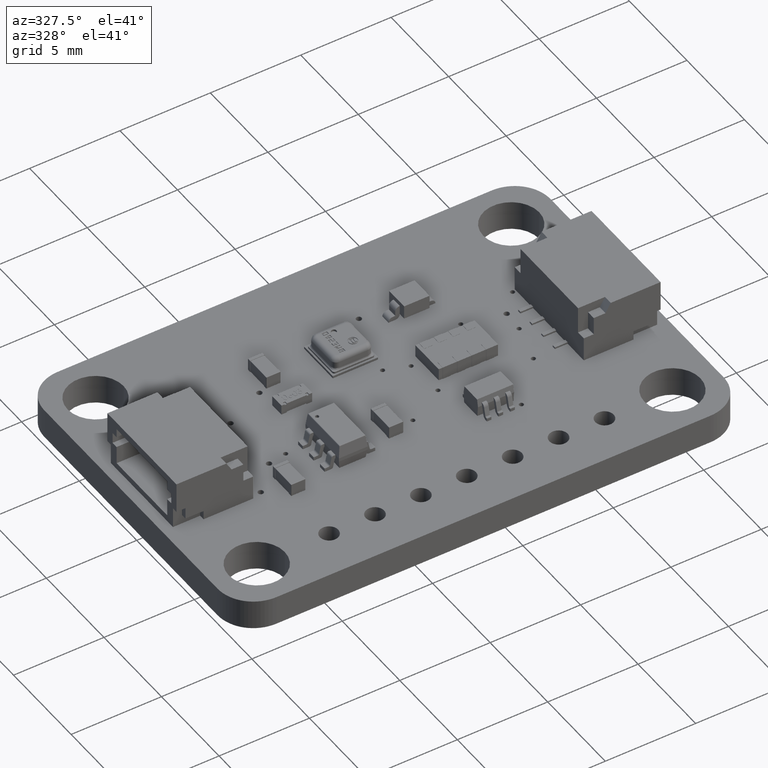
[diagram: clean part render]
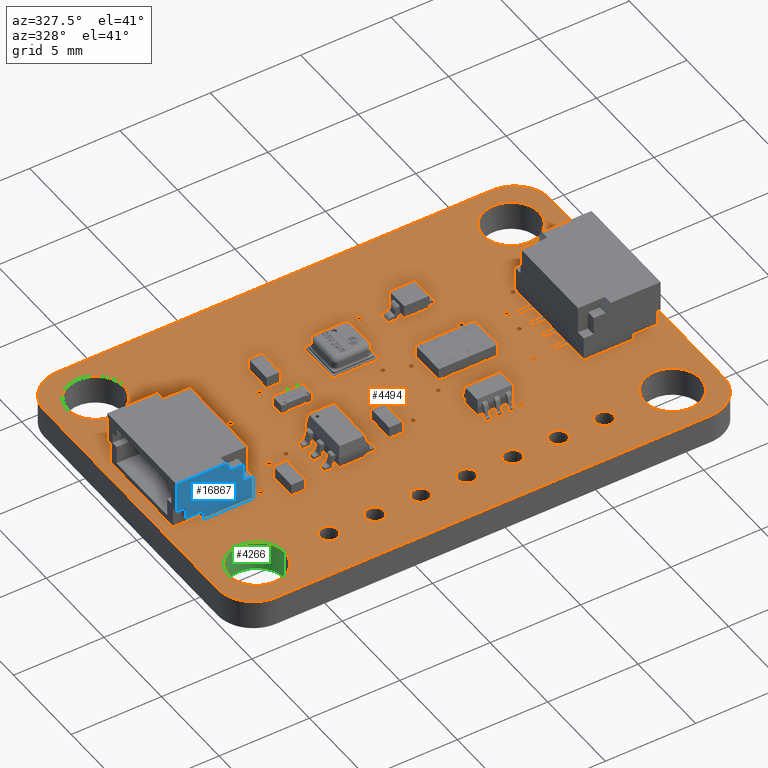
[diagram: same view with three faces highlighted in distinct colors, each labeled with its STEP entity id]
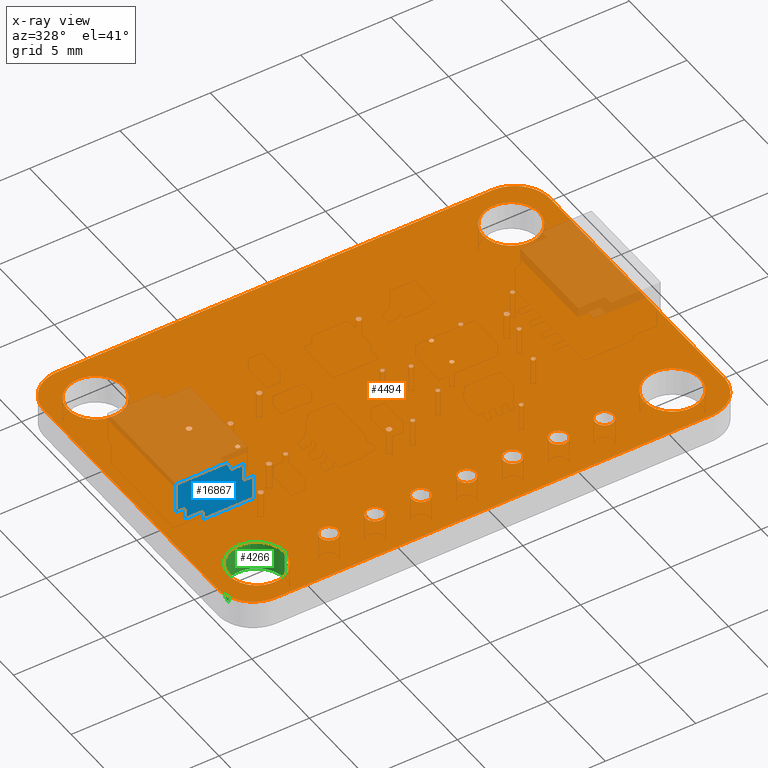
[diagram: x-ray of the same camera — body ghosted, the three highlighted faces saturated]
A machine part, auxiliary view with three faces highlighted in distinct colors.
The next image is the same camera in x-ray (body ghosted, the three faces saturated) — at least one of them is partly hidden behind the body in this view.
Their STEP definitions:

[orange] entity #4494 — the highlighted planar face has unit normal (0, 0, -1).
#109 = VERTEX_POINT('',#110);
#110 = CARTESIAN_POINT('',(26.,0.E+000,0.82));
#116 = EDGE_CURVE('',#109,#117,#119,.T.);
#117 = VERTEX_POINT('',#118);
#118 = CARTESIAN_POINT('',(2.,0.E+000,0.82));
#119 = LINE('',#120,#121);
#120 = CARTESIAN_POINT('',(26.,0.E+000,0.82));
#121 = VECTOR('',#122,1.);
#122 = DIRECTION('',(-1.,0.E+000,0.E+000));
#149 = VERTEX_POINT('',#150);
#150 = CARTESIAN_POINT('',(26.20786,-1.01E-002,0.82));
#156 = EDGE_CURVE('',#149,#109,#157,.T.);
#157 = LINE('',#158,#159);
#158 = CARTESIAN_POINT('',(26.20786,-1.01E-002,0.82));
#159 = VECTOR('',#160,1.);
#160 = DIRECTION('',(-0.998821572954,4.853313714442E-002,0.E+000));
#178 = EDGE_CURVE('',#117,#179,#181,.T.);
#179 = VERTEX_POINT('',#180);
#180 = CARTESIAN_POINT('',(1.79214,-1.01E-002,0.82));
#181 = LINE('',#182,#183);
#182 = CARTESIAN_POINT('',(2.,0.E+000,0.82));
#183 = VECTOR('',#184,1.);
#184 = DIRECTION('',(-0.998821572954,-4.853313714442E-002,0.E+000));
#211 = VERTEX_POINT('',#212);
#212 = CARTESIAN_POINT('',(26.40894,-3.979E-002,0.82));
#218 = EDGE_CURVE('',#211,#149,#219,.T.);
#219 = LINE('',#220,#221);
#220 = CARTESIAN_POINT('',(26.40894,-3.979E-002,0.82));
#221 = VECTOR('',#222,1.);
#222 = DIRECTION('',(-0.989274402589,0.146069012397,0.E+000));
#240 = EDGE_CURVE('',#179,#241,#243,.T.);
#241 = VERTEX_POINT('',#242);
#242 = CARTESIAN_POINT('',(1.59106,-3.979E-002,0.82));
#243 = LINE('',#244,#245);
#244 = CARTESIAN_POINT('',(1.79214,-1.01E-002,0.82));
#245 = VECTOR('',#246,1.);
#246 = DIRECTION('',(-0.989274402589,-0.146069012397,0.E+000));
#273 = VERTEX_POINT('',#274);
#274 = CARTESIAN_POINT('',(26.60233,-8.817E-002,0.82));
#280 = EDGE_CURVE('',#273,#211,#281,.T.);
#281 = LINE('',#282,#283);
#282 = CARTESIAN_POINT('',(26.60233,-8.817E-002,0.82));
#283 = VECTOR('',#284,1.);
#284 = DIRECTION('',(-0.970104127996,0.242689062063,0.E+000));
#302 = EDGE_CURVE('',#241,#303,#305,.T.);
#303 = VERTEX_POINT('',#304);
#304 = CARTESIAN_POINT('',(1.39767,-8.817E-002,0.82));
#305 = LINE('',#306,#307);
#306 = CARTESIAN_POINT('',(1.59106,-3.979E-002,0.82));
#307 = VECTOR('',#308,1.);
#308 = DIRECTION('',(-0.970104127996,-0.242689062063,0.E+000));
#335 = VERTEX_POINT('',#336);
#336 = CARTESIAN_POINT('',(26.78711,-0.1543,0.82));
#342 = EDGE_CURVE('',#335,#273,#343,.T.);
#343 = LINE('',#344,#345);
#344 = CARTESIAN_POINT('',(26.78711,-0.1543,0.82));
#345 = VECTOR('',#346,1.);
#346 = DIRECTION('',(-0.941520370828,0.336956067339,0.E+000));
#364 = EDGE_CURVE('',#303,#365,#367,.T.);
#365 = VERTEX_POINT('',#366);
#366 = CARTESIAN_POINT('',(1.21289,-0.1543,0.82));
#367 = LINE('',#368,#369);
#368 = CARTESIAN_POINT('',(1.39767,-8.817E-002,0.82));
#369 = VECTOR('',#370,1.);
#370 = DIRECTION('',(-0.941520370828,-0.336956067339,0.E+000));
#397 = VERTEX_POINT('',#398);
#398 = CARTESIAN_POINT('',(26.96237,-0.23727,0.82));
#404 = EDGE_CURVE('',#397,#335,#405,.T.);
#405 = LINE('',#406,#407);
#406 = CARTESIAN_POINT('',(26.96237,-0.23727,0.82));
#407 = VECTOR('',#408,1.);
#408 = DIRECTION('',(-0.90383337441,0.42788460045,0.E+000));
#426 = EDGE_CURVE('',#365,#427,#429,.T.);
#427 = VERTEX_POINT('',#428);
#428 = CARTESIAN_POINT('',(1.03763,-0.23727,0.82));
#429 = LINE('',#430,#431);
#430 = CARTESIAN_POINT('',(1.21289,-0.1543,0.82));
#431 = VECTOR('',#432,1.);
#432 = DIRECTION('',(-0.90383337441,-0.42788460045,0.E+000));
#459 = VERTEX_POINT('',#460);
#460 = CARTESIAN_POINT('',(27.1272,-0.33618,0.82));
#466 = EDGE_CURVE('',#459,#397,#467,.T.);
#467 = LINE('',#468,#469);
#468 = CARTESIAN_POINT('',(27.1272,-0.33618,0.82));
#469 = VECTOR('',#470,1.);
#470 = DIRECTION('',(-0.857465383851,0.514541655746,0.E+000));
#488 = EDGE_CURVE('',#427,#489,#491,.T.);
#489 = VERTEX_POINT('',#490);
#490 = CARTESIAN_POINT('',(0.8728,-0.33618,0.82));
#491 = LINE('',#492,#493);
#492 = CARTESIAN_POINT('',(1.03763,-0.23727,0.82));
#493 = VECTOR('',#494,1.);
#494 = DIRECTION('',(-0.857465383851,-0.514541655746,0.E+000));
#521 = VERTEX_POINT('',#522);
#522 = CARTESIAN_POINT('',(27.28067,-0.4501,0.82));
#528 = EDGE_CURVE('',#521,#459,#529,.T.);
#529 = LINE('',#530,#531);
#530 = CARTESIAN_POINT('',(27.28067,-0.4501,0.82));
#531 = VECTOR('',#532,1.);
#532 = DIRECTION('',(-0.802959902094,0.596033049108,0.E+000));
#550 = EDGE_CURVE('',#489,#551,#553,.T.);
#551 = VERTEX_POINT('',#552);
#552 = CARTESIAN_POINT('',(0.71933,-0.4501,0.82));
#553 = LINE('',#554,#555);
#554 = CARTESIAN_POINT('',(0.8728,-0.33618,0.82));
#555 = VECTOR('',#556,1.);
#556 = DIRECTION('',(-0.802959902094,-0.596033049108,0.E+000));
#583 = VERTEX_POINT('',#584);
#584 = CARTESIAN_POINT('',(27.42188,-0.57812,0.82));
#590 = EDGE_CURVE('',#583,#521,#591,.T.);
#591 = LINE('',#592,#593);
#592 = CARTESIAN_POINT('',(27.42188,-0.57812,0.82));
#593 = VECTOR('',#594,1.);
#594 = DIRECTION('',(-0.740860487423,0.671658944833,0.E+000));
#612 = EDGE_CURVE('',#551,#613,#615,.T.);
#613 = VERTEX_POINT('',#614);
#614 = CARTESIAN_POINT('',(0.57812,-0.57812,0.82));
#615 = LINE('',#616,#617);
#616 = CARTESIAN_POINT('',(0.71933,-0.4501,0.82));
#617 = VECTOR('',#618,1.);
#618 = DIRECTION('',(-0.740860487423,-0.671658944833,0.E+000));
#645 = VERTEX_POINT('',#646);
#646 = CARTESIAN_POINT('',(27.5499,-0.71933,0.82));
#652 = EDGE_CURVE('',#645,#583,#653,.T.);
#653 = LINE('',#654,#655);
#654 = CARTESIAN_POINT('',(27.5499,-0.71933,0.82));
#655 = VECTOR('',#656,1.);
#656 = DIRECTION('',(-0.671658944833,0.740860487423,0.E+000));
#674 = EDGE_CURVE('',#613,#675,#677,.T.);
#675 = VERTEX_POINT('',#676);
#676 = CARTESIAN_POINT('',(0.4501,-0.71933,0.82));
#677 = LINE('',#678,#679);
#678 = CARTESIAN_POINT('',(0.57812,-0.57812,0.82));
#679 = VECTOR('',#680,1.);
#680 = DIRECTION('',(-0.671658944833,-0.740860487423,0.E+000));
#707 = VERTEX_POINT('',#708);
#708 = CARTESIAN_POINT('',(27.66382,-0.8728,0.82));
#714 = EDGE_CURVE('',#707,#645,#715,.T.);
#715 = LINE('',#716,#717);
#716 = CARTESIAN_POINT('',(27.66382,-0.8728,0.82));
#717 = VECTOR('',#718,1.);
#718 = DIRECTION('',(-0.596033049108,0.802959902094,0.E+000));
#736 = EDGE_CURVE('',#675,#737,#739,.T.);
#737 = VERTEX_POINT('',#738);
#738 = CARTESIAN_POINT('',(0.33618,-0.8728,0.82));
#739 = LINE('',#740,#741);
#740 = CARTESIAN_POINT('',(0.4501,-0.71933,0.82));
#741 = VECTOR('',#742,1.);
#742 = DIRECTION('',(-0.596033049108,-0.802959902094,0.E+000));
#769 = VERTEX_POINT('',#770);
#770 = CARTESIAN_POINT('',(27.76273,-1.03763,0.82));
#776 = EDGE_CURVE('',#769,#707,#777,.T.);
#777 = LINE('',#778,#779);
#778 = CARTESIAN_POINT('',(27.76273,-1.03763,0.82));
#779 = VECTOR('',#780,1.);
#780 = DIRECTION('',(-0.514541655746,0.857465383851,0.E+000));
#798 = EDGE_CURVE('',#737,#799,#801,.T.);
#799 = VERTEX_POINT('',#800);
#800 = CARTESIAN_POINT('',(0.23727,-1.03763,0.82));
#801 = LINE('',#802,#803);
#802 = CARTESIAN_POINT('',(0.33618,-0.8728,0.82));
#803 = VECTOR('',#804,1.);
#804 = DIRECTION('',(-0.514541655746,-0.857465383851,0.E+000));
#831 = VERTEX_POINT('',#832);
#832 = CARTESIAN_POINT('',(27.8457,-1.21289,0.82));
#838 = EDGE_CURVE('',#831,#769,#839,.T.);
#839 = LINE('',#840,#841);
#840 = CARTESIAN_POINT('',(27.8457,-1.21289,0.82));
#841 = VECTOR('',#842,1.);
#842 = DIRECTION('',(-0.42788460045,0.90383337441,0.E+000));
#860 = EDGE_CURVE('',#799,#861,#863,.T.);
#861 = VERTEX_POINT('',#862);
#862 = CARTESIAN_POINT('',(0.1543,-1.21289,0.82));
#863 = LINE('',#864,#865);
#864 = CARTESIAN_POINT('',(0.23727,-1.03763,0.82));
#865 = VECTOR('',#866,1.);
#866 = DIRECTION('',(-0.42788460045,-0.90383337441,0.E+000));
#893 = VERTEX_POINT('',#894);
#894 = CARTESIAN_POINT('',(27.91183,-1.39767,0.82));
#900 = EDGE_CURVE('',#893,#831,#901,.T.);
#901 = LINE('',#902,#903);
#902 = CARTESIAN_POINT('',(27.91183,-1.39767,0.82));
#903 = VECTOR('',#904,1.);
#904 = DIRECTION('',(-0.336956067339,0.941520370828,0.E+000));
#922 = EDGE_CURVE('',#861,#923,#925,.T.);
#923 = VERTEX_POINT('',#924);
#924 = CARTESIAN_POINT('',(8.817E-002,-1.39767,0.82));
#925 = LINE('',#926,#927);
#926 = CARTESIAN_POINT('',(0.1543,-1.21289,0.82));
#927 = VECTOR('',#928,1.);
#928 = DIRECTION('',(-0.336956067339,-0.941520370828,0.E+000));
#955 = VERTEX_POINT('',#956);
#956 = CARTESIAN_POINT('',(27.9602,-1.59106,0.82));
#962 = EDGE_CURVE('',#955,#893,#963,.T.);
#963 = LINE('',#964,#965);
#964 = CARTESIAN_POINT('',(27.9602,-1.59106,0.82));
#965 = VECTOR('',#966,1.);
#966 = DIRECTION('',(-0.24264185261,0.970115937073,0.E+000));
#984 = EDGE_CURVE('',#923,#985,#987,.T.);
#985 = VERTEX_POINT('',#986);
#986 = CARTESIAN_POINT('',(3.98E-002,-1.59106,0.82));
#987 = LINE('',#988,#989);
#988 = CARTESIAN_POINT('',(8.817E-002,-1.39767,0.82));
#989 = VECTOR('',#990,1.);
#990 = DIRECTION('',(-0.24264185261,-0.970115937073,0.E+000));
#1017 = VERTEX_POINT('',#1018);
#1018 = CARTESIAN_POINT('',(27.9899,-1.79214,0.82));
#1024 = EDGE_CURVE('',#1017,#955,#1025,.T.);
#1025 = LINE('',#1026,#1027);
#1026 = CARTESIAN_POINT('',(27.9899,-1.79214,0.82));
#1027 = VECTOR('',#1028,1.);
#1028 = DIRECTION('',(-0.146117160232,0.989267292235,0.E+000));
#1046 = EDGE_CURVE('',#985,#1047,#1049,.T.);
#1047 = VERTEX_POINT('',#1048);
#1048 = CARTESIAN_POINT('',(1.01E-002,-1.79214,0.82));
#1049 = LINE('',#1050,#1051);
#1050 = CARTESIAN_POINT('',(3.98E-002,-1.59106,0.82));
#1051 = VECTOR('',#1052,1.);
#1052 = DIRECTION('',(-0.146117160232,-0.989267292235,0.E+000));
#1079 = VERTEX_POINT('',#1080);
#1080 = CARTESIAN_POINT('',(28.,-2.,0.82));
#1086 = EDGE_CURVE('',#1079,#1017,#1087,.T.);
#1087 = LINE('',#1088,#1089);
#1088 = CARTESIAN_POINT('',(28.,-2.,0.82));
#1089 = VECTOR('',#1090,1.);
#1090 = DIRECTION('',(-4.853313714442E-002,0.998821572954,0.E+000));
#1108 = EDGE_CURVE('',#1047,#1109,#1111,.T.);
#1109 = VERTEX_POINT('',#1110);
#1110 = CARTESIAN_POINT('',(0.E+000,-2.,0.82));
#1111 = LINE('',#1112,#1113);
#1112 = CARTESIAN_POINT('',(1.01E-002,-1.79214,0.82));
#1113 = VECTOR('',#1114,1.);
#1114 = DIRECTION('',(-4.853313714442E-002,-0.998821572954,0.E+000));
#1141 = VERTEX_POINT('',#1142);
#1142 = CARTESIAN_POINT('',(28.,-17.,0.82));
#1148 = EDGE_CURVE('',#1141,#1079,#1149,.T.);
#1149 = LINE('',#1150,#1151);
#1150 = CARTESIAN_POINT('',(28.,-17.,0.82));
#1151 = VECTOR('',#1152,1.);
#1152 = DIRECTION('',(0.E+000,1.,0.E+000));
#1170 = EDGE_CURVE('',#1109,#1171,#1173,.T.);
#1171 = VERTEX_POINT('',#1172);
#1172 = CARTESIAN_POINT('',(0.E+000,-17.,0.82));
#1173 = LINE('',#1174,#1175);
#1174 = CARTESIAN_POINT('',(0.E+000,-2.,0.82));
#1175 = VECTOR('',#1176,1.);
#1176 = DIRECTION('',(0.E+000,-1.,0.E+000));
#1203 = VERTEX_POINT('',#1204);
#1204 = CARTESIAN_POINT('',(27.9899,-17.20786,0.82));
#1210 = EDGE_CURVE('',#1203,#1141,#1211,.T.);
#1211 = LINE('',#1212,#1213);
#1212 = CARTESIAN_POINT('',(27.9899,-17.20786,0.82));
#1213 = VECTOR('',#1214,1.);
#1214 = DIRECTION('',(4.853313714442E-002,0.998821572954,0.E+000));
#1232 = EDGE_CURVE('',#1171,#1233,#1235,.T.);
#1233 = VERTEX_POINT('',#1234);
#1234 = CARTESIAN_POINT('',(1.01E-002,-17.20786,0.82));
#1235 = LINE('',#1236,#1237);
#1236 = CARTESIAN_POINT('',(0.E+000,-17.,0.82));
#1237 = VECTOR('',#1238,1.);
#1238 = DIRECTION('',(4.853313714442E-002,-0.998821572954,0.E+000));
#1265 = VERTEX_POINT('',#1266);
#1266 = CARTESIAN_POINT('',(27.9602,-17.40894,0.82));
#1272 = EDGE_CURVE('',#1265,#1203,#1273,.T.);
#1273 = LINE('',#1274,#1275);
#1274 = CARTESIAN_POINT('',(27.9602,-17.40894,0.82));
#1275 = VECTOR('',#1276,1.);
#1276 = DIRECTION('',(0.146117160232,0.989267292235,0.E+000));
#1294 = EDGE_CURVE('',#1233,#1295,#1297,.T.);
#1295 = VERTEX_POINT('',#1296);
#1296 = CARTESIAN_POINT('',(3.98E-002,-17.40894,0.82));
#1297 = LINE('',#1298,#1299);
#1298 = CARTESIAN_POINT('',(1.01E-002,-17.20786,0.82));
#1299 = VECTOR('',#1300,1.);
#1300 = DIRECTION('',(0.146117160232,-0.989267292235,0.E+000));
#1327 = VERTEX_POINT('',#1328);
#1328 = CARTESIAN_POINT('',(27.91183,-17.60233,0.82));
#1334 = EDGE_CURVE('',#1327,#1265,#1335,.T.);
#1335 = LINE('',#1336,#1337);
#1336 = CARTESIAN_POINT('',(27.91183,-17.60233,0.82));
#1337 = VECTOR('',#1338,1.);
#1338 = DIRECTION('',(0.24264185261,0.970115937073,0.E+000));
#1356 = EDGE_CURVE('',#1295,#1357,#1359,.T.);
#1357 = VERTEX_POINT('',#1358);
#1358 = CARTESIAN_POINT('',(8.817E-002,-17.60233,0.82));
#1359 = LINE('',#1360,#1361);
#1360 = CARTESIAN_POINT('',(3.98E-002,-17.40894,0.82));
#1361 = VECTOR('',#1362,1.);
#1362 = DIRECTION('',(0.24264185261,-0.970115937073,0.E+000));
#1389 = VERTEX_POINT('',#1390);
#1390 = CARTESIAN_POINT('',(27.8457,-17.78711,0.82));
#1396 = EDGE_CURVE('',#1389,#1327,#1397,.T.);
#1397 = LINE('',#1398,#1399);
#1398 = CARTESIAN_POINT('',(27.8457,-17.78711,0.82));
#1399 = VECTOR('',#1400,1.);
#1400 = DIRECTION('',(0.336956067339,0.941520370828,0.E+000));
#1418 = EDGE_CURVE('',#1357,#1419,#1421,.T.);
#1419 = VERTEX_POINT('',#1420);
#1420 = CARTESIAN_POINT('',(0.1543,-17.78711,0.82));
#1421 = LINE('',#1422,#1423);
#1422 = CARTESIAN_POINT('',(8.817E-002,-17.60233,0.82));
#1423 = VECTOR('',#1424,1.);
#1424 = DIRECTION('',(0.336956067339,-0.941520370828,0.E+000));
#1451 = VERTEX_POINT('',#1452);
#1452 = CARTESIAN_POINT('',(27.76273,-17.96237,0.82));
#1458 = EDGE_CURVE('',#1451,#1389,#1459,.T.);
#1459 = LINE('',#1460,#1461);
#1460 = CARTESIAN_POINT('',(27.76273,-17.96237,0.82));
#1461 = VECTOR('',#1462,1.);
#1462 = DIRECTION('',(0.42788460045,0.90383337441,0.E+000));
#1480 = EDGE_CURVE('',#1419,#1481,#1483,.T.);
#1481 = VERTEX_POINT('',#1482);
#1482 = CARTESIAN_POINT('',(0.23727,-17.96237,0.82));
#1483 = LINE('',#1484,#1485);
#1484 = CARTESIAN_POINT('',(0.1543,-17.78711,0.82));
#1485 = VECTOR('',#1486,1.);
#1486 = DIRECTION('',(0.42788460045,-0.90383337441,0.E+000));
#1513 = VERTEX_POINT('',#1514);
#1514 = CARTESIAN_POINT('',(27.66382,-18.1272,0.82));
#1520 = EDGE_CURVE('',#1513,#1451,#1521,.T.);
#1521 = LINE('',#1522,#1523);
#1522 = CARTESIAN_POINT('',(27.66382,-18.1272,0.82));
#1523 = VECTOR('',#1524,1.);
#1524 = DIRECTION('',(0.514541655746,0.857465383851,0.E+000));
#1542 = EDGE_CURVE('',#1481,#1543,#1545,.T.);
#1543 = VERTEX_POINT('',#1544);
#1544 = CARTESIAN_POINT('',(0.33618,-18.1272,0.82));
#1545 = LINE('',#1546,#1547);
#1546 = CARTESIAN_POINT('',(0.23727,-17.96237,0.82));
#1547 = VECTOR('',#1548,1.);
#1548 = DIRECTION('',(0.514541655746,-0.857465383851,0.E+000));
#1575 = VERTEX_POINT('',#1576);
#1576 = CARTESIAN_POINT('',(27.5499,-18.28067,0.82));
#1582 = EDGE_CURVE('',#1575,#1513,#1583,.T.);
#1583 = LINE('',#1584,#1585);
#1584 = CARTESIAN_POINT('',(27.5499,-18.28067,0.82));
#1585 = VECTOR('',#1586,1.);
#1586 = DIRECTION('',(0.596033049108,0.802959902094,0.E+000));
#1604 = EDGE_CURVE('',#1543,#1605,#1607,.T.);
#1605 = VERTEX_POINT('',#1606);
#1606 = CARTESIAN_POINT('',(0.4501,-18.28067,0.82));
#1607 = LINE('',#1608,#1609);
#1608 = CARTESIAN_POINT('',(0.33618,-18.1272,0.82));
#1609 = VECTOR('',#1610,1.);
#1610 = DIRECTION('',(0.596033049108,-0.802959902094,0.E+000));
#1637 = VERTEX_POINT('',#1638);
#1638 = CARTESIAN_POINT('',(27.42188,-18.42188,0.82));
#1644 = EDGE_CURVE('',#1637,#1575,#1645,.T.);
#1645 = LINE('',#1646,#1647);
#1646 = CARTESIAN_POINT('',(27.42188,-18.42188,0.82));
#1647 = VECTOR('',#1648,1.);
#1648 = DIRECTION('',(0.671658944833,0.740860487423,0.E+000));
#1666 = EDGE_CURVE('',#1605,#1667,#1669,.T.);
#1667 = VERTEX_POINT('',#1668);
#1668 = CARTESIAN_POINT('',(0.57812,-18.42188,0.82));
#1669 = LINE('',#1670,#1671);
#1670 = CARTESIAN_POINT('',(0.4501,-18.28067,0.82));
#1671 = VECTOR('',#1672,1.);
#1672 = DIRECTION('',(0.671658944833,-0.740860487423,0.E+000));
#1699 = VERTEX_POINT('',#1700);
#1700 = CARTESIAN_POINT('',(27.28067,-18.5499,0.82));
#1706 = EDGE_CURVE('',#1699,#1637,#1707,.T.);
#1707 = LINE('',#1708,#1709);
#1708 = CARTESIAN_POINT('',(27.28067,-18.5499,0.82));
#1709 = VECTOR('',#1710,1.);
#1710 = DIRECTION('',(0.740860487423,0.671658944833,0.E+000));
#1728 = EDGE_CURVE('',#1667,#1729,#1731,.T.);
#1729 = VERTEX_POINT('',#1730);
#1730 = CARTESIAN_POINT('',(0.71933,-18.5499,0.82));
#1731 = LINE('',#1732,#1733);
#1732 = CARTESIAN_POINT('',(0.57812,-18.42188,0.82));
#1733 = VECTOR('',#1734,1.);
#1734 = DIRECTION('',(0.740860487423,-0.671658944833,0.E+000));
#1761 = VERTEX_POINT('',#1762);
#1762 = CARTESIAN_POINT('',(27.1272,-18.66382,0.82));
#1768 = EDGE_CURVE('',#1761,#1699,#1769,.T.);
#1769 = LINE('',#1770,#1771);
#1770 = CARTESIAN_POINT('',(27.1272,-18.66382,0.82));
#1771 = VECTOR('',#1772,1.);
#1772 = DIRECTION('',(0.802959902094,0.596033049108,0.E+000));
#1790 = EDGE_CURVE('',#1729,#1791,#1793,.T.);
#1791 = VERTEX_POINT('',#1792);
#1792 = CARTESIAN_POINT('',(0.8728,-18.66382,0.82));
#1793 = LINE('',#1794,#1795);
#1794 = CARTESIAN_POINT('',(0.71933,-18.5499,0.82));
#1795 = VECTOR('',#1796,1.);
#1796 = DIRECTION('',(0.802959902094,-0.596033049108,0.E+000));
#1823 = VERTEX_POINT('',#1824);
#1824 = CARTESIAN_POINT('',(26.96237,-18.76273,0.82));
#1830 = EDGE_CURVE('',#1823,#1761,#1831,.T.);
#1831 = LINE('',#1832,#1833);
#1832 = CARTESIAN_POINT('',(26.96237,-18.76273,0.82));
#1833 = VECTOR('',#1834,1.);
#1834 = DIRECTION('',(0.857465383851,0.514541655746,0.E+000));
#1852 = EDGE_CURVE('',#1791,#1853,#1855,.T.);
#1853 = VERTEX_POINT('',#1854);
#1854 = CARTESIAN_POINT('',(1.03763,-18.76273,0.82));
#1855 = LINE('',#1856,#1857);
#1856 = CARTESIAN_POINT('',(0.8728,-18.66382,0.82));
#1857 = VECTOR('',#1858,1.);
#1858 = DIRECTION('',(0.857465383851,-0.514541655746,0.E+000));
#1885 = VERTEX_POINT('',#1886);
#1886 = CARTESIAN_POINT('',(26.78711,-18.8457,0.82));
#1892 = EDGE_CURVE('',#1885,#1823,#1893,.T.);
#1893 = LINE('',#1894,#1895);
#1894 = CARTESIAN_POINT('',(26.78711,-18.8457,0.82));
#1895 = VECTOR('',#1896,1.);
#1896 = DIRECTION('',(0.90383337441,0.42788460045,0.E+000));
#1914 = EDGE_CURVE('',#1853,#1915,#1917,.T.);
#1915 = VERTEX_POINT('',#1916);
#1916 = CARTESIAN_POINT('',(1.21289,-18.8457,0.82));
#1917 = LINE('',#1918,#1919);
#1918 = CARTESIAN_POINT('',(1.03763,-18.76273,0.82));
#1919 = VECTOR('',#1920,1.);
#1920 = DIRECTION('',(0.90383337441,-0.42788460045,0.E+000));
#1947 = VERTEX_POINT('',#1948);
#1948 = CARTESIAN_POINT('',(26.60233,-18.91183,0.82));
#1954 = EDGE_CURVE('',#1947,#1885,#1955,.T.);
#1955 = LINE('',#1956,#1957);
#1956 = CARTESIAN_POINT('',(26.60233,-18.91183,0.82));
#1957 = VECTOR('',#1958,1.);
#1958 = DIRECTION('',(0.941520370828,0.336956067339,0.E+000));
#1976 = EDGE_CURVE('',#1915,#1977,#1979,.T.);
#1977 = VERTEX_POINT('',#1978);
#1978 = CARTESIAN_POINT('',(1.39767,-18.91183,0.82));
#1979 = LINE('',#1980,#1981);
#1980 = CARTESIAN_POINT('',(1.21289,-18.8457,0.82));
#1981 = VECTOR('',#1982,1.);
#1982 = DIRECTION('',(0.941520370828,-0.336956067339,0.E+000));
#2009 = VERTEX_POINT('',#2010);
#2010 = CARTESIAN_POINT('',(26.40894,-18.96021,0.82));
#2016 = EDGE_CURVE('',#2009,#1947,#2017,.T.);
#2017 = LINE('',#2018,#2019);
#2018 = CARTESIAN_POINT('',(26.40894,-18.96021,0.82));
#2019 = VECTOR('',#2020,1.);
#2020 = DIRECTION('',(0.970104127996,0.242689062063,0.E+000));
#2038 = EDGE_CURVE('',#1977,#2039,#2041,.T.);
#2039 = VERTEX_POINT('',#2040);
#2040 = CARTESIAN_POINT('',(1.59106,-18.96021,0.82));
#2041 = LINE('',#2042,#2043);
#2042 = CARTESIAN_POINT('',(1.39767,-18.91183,0.82));
#2043 = VECTOR('',#2044,1.);
#2044 = DIRECTION('',(0.970104127996,-0.242689062063,0.E+000));
#2071 = VERTEX_POINT('',#2072);
#2072 = CARTESIAN_POINT('',(26.20786,-18.9899,0.82));
#2078 = EDGE_CURVE('',#2071,#2009,#2079,.T.);
#2079 = LINE('',#2080,#2081);
#2080 = CARTESIAN_POINT('',(26.20786,-18.9899,0.82));
#2081 = VECTOR('',#2082,1.);
#2082 = DIRECTION('',(0.989274402589,0.146069012397,0.E+000));
#2100 = EDGE_CURVE('',#2039,#2101,#2103,.T.);
#2101 = VERTEX_POINT('',#2102);
#2102 = CARTESIAN_POINT('',(1.79214,-18.9899,0.82));
#2103 = LINE('',#2104,#2105);
#2104 = CARTESIAN_POINT('',(1.59106,-18.96021,0.82));
#2105 = VECTOR('',#2106,1.);
#2106 = DIRECTION('',(0.989274402589,-0.146069012397,0.E+000));
#2133 = VERTEX_POINT('',#2134);
#2134 = CARTESIAN_POINT('',(26.,-19.,0.82));
#2140 = EDGE_CURVE('',#2133,#2071,#2141,.T.);
#2141 = LINE('',#2142,#2143);
#2142 = CARTESIAN_POINT('',(26.,-19.,0.82));
#2143 = VECTOR('',#2144,1.);
#2144 = DIRECTION('',(0.998821572954,4.853313714441E-002,0.E+000));
#2162 = EDGE_CURVE('',#2101,#2163,#2165,.T.);
#2163 = VERTEX_POINT('',#2164);
#2164 = CARTESIAN_POINT('',(2.,-19.,0.82));
#2165 = LINE('',#2166,#2167);
#2166 = CARTESIAN_POINT('',(1.79214,-18.9899,0.82));
#2167 = VECTOR('',#2168,1.);
#2168 = DIRECTION('',(0.998821572954,-4.853313714441E-002,0.E+000));
#2193 = EDGE_CURVE('',#2163,#2133,#2194,.T.);
#2194 = LINE('',#2195,#2196);
#2195 = CARTESIAN_POINT('',(2.,-19.,0.82));
#2196 = VECTOR('',#2197,1.);
#2197 = DIRECTION('',(1.,0.E+000,0.E+000));
#2226 = VERTEX_POINT('',#2227);
#2227 = CARTESIAN_POINT('',(9.548,-16.5,0.82));
#2233 = EDGE_CURVE('',#2234,#2226,#2236,.T.);
#2234 = VERTEX_POINT('',#2235);
#2235 = CARTESIAN_POINT('',(8.532,-16.5,0.82));
#2236 = CIRCLE('',#2237,0.508);
#2237 = AXIS2_PLACEMENT_3D('',#2238,#2239,#2240);
#2238 = CARTESIAN_POINT('',(9.04,-16.5,0.82));
#2239 = DIRECTION('',(0.E+000,0.E+000,1.));
#2240 = DIRECTION('',(1.,0.E+000,-0.E+000));
#2255 = EDGE_CURVE('',#2226,#2234,#2256,.T.);
#2256 = CIRCLE('',#2257,0.508);
#2257 = AXIS2_PLACEMENT_3D('',#2258,#2259,#2260);
#2258 = CARTESIAN_POINT('',(9.04,-16.5,0.82));
#2259 = DIRECTION('',(0.E+000,0.E+000,1.));
#2260 = DIRECTION('',(1.,0.E+000,-0.E+000));
#2291 = VERTEX_POINT('',#2292);
#2292 = CARTESIAN_POINT('',(7.96168,-10.63026,0.82));
#2298 = EDGE_CURVE('',#2299,#2291,#2301,.T.);
#2299 = VERTEX_POINT('',#2300);
#2300 = CARTESIAN_POINT('',(7.71168,-10.63026,0.82));
#2301 = CIRCLE('',#2302,0.125);
#2302 = AXIS2_PLACEMENT_3D('',#2303,#2304,#2305);
#2303 = CARTESIAN_POINT('',(7.83668,-10.63026,0.82));
#2304 = DIRECTION('',(0.E+000,0.E+000,1.));
#2305 = DIRECTION('',(1.,0.E+000,-0.E+000));
#2320 = EDGE_CURVE('',#2291,#2299,#2321,.T.);
#2321 = CIRCLE('',#2322,0.125);
#2322 = AXIS2_PLACEMENT_3D('',#2323,#2324,#2325);
#2323 = CARTESIAN_POINT('',(7.83668,-10.63026,0.82));
#2324 = DIRECTION('',(0.E+000,0.E+000,1.));
#2325 = DIRECTION('',(1.,0.E+000,-0.E+000));
#2356 = VERTEX_POINT('',#2357);
#2357 = CARTESIAN_POINT('',(12.99597,-11.7514,0.82));
#2363 = EDGE_CURVE('',#2364,#2356,#2366,.T.);
#2364 = VERTEX_POINT('',#2365);
#2365 = CARTESIAN_POINT('',(12.69117,-11.7514,0.82));
#2366 = CIRCLE('',#2367,0.1524);
#2367 = AXIS2_PLACEMENT_3D('',#2368,#2369,#2370);
#2368 = CARTESIAN_POINT('',(12.84357,-11.7514,0.82));
#2369 = DIRECTION('',(0.E+000,0.E+000,1.));
#2370 = DIRECTION('',(1.,0.E+000,-0.E+000));
#2385 = EDGE_CURVE('',#2356,#2364,#2386,.T.);
#2386 = CIRCLE('',#2387,0.1524);
#2387 = AXIS2_PLACEMENT_3D('',#2388,#2389,#2390);
#2388 = CARTESIAN_POINT('',(12.84357,-11.7514,0.82));
#2389 = DIRECTION('',(0.E+000,0.E+000,1.));
#2390 = DIRECTION('',(1.,0.E+000,-0.E+000));
#2421 = VERTEX_POINT('',#2422);
#2422 = CARTESIAN_POINT('',(12.088,-16.5,0.82));
#2428 = EDGE_CURVE('',#2429,#2421,#2431,.T.);
#2429 = VERTEX_POINT('',#2430);
#2430 = CARTESIAN_POINT('',(11.072,-16.5,0.82));
#2431 = CIRCLE('',#2432,0.508);
#2432 = AXIS2_PLACEMENT_3D('',#2433,#2434,#2435);
#2433 = CARTESIAN_POINT('',(11.58,-16.5,0.82));
#2434 = DIRECTION('',(0.E+000,0.E+000,1.));
#2435 = DIRECTION('',(1.,0.E+000,-0.E+000));
#2450 = EDGE_CURVE('',#2421,#2429,#2451,.T.);
#2451 = CIRCLE('',#2452,0.508);
#2452 = AXIS2_PLACEMENT_3D('',#2453,#2454,#2455);
#2453 = CARTESIAN_POINT('',(11.58,-16.5,0.82));
#2454 = DIRECTION('',(0.E+000,0.E+000,1.));
#2455 = DIRECTION('',(1.,0.E+000,-0.E+000));
#2486 = VERTEX_POINT('',#2487);
#2487 = CARTESIAN_POINT('',(19.708,-16.5,0.82));
#2493 = EDGE_CURVE('',#2494,#2486,#2496,.T.);
#2494 = VERTEX_POINT('',#2495);
#2495 = CARTESIAN_POINT('',(18.692,-16.5,0.82));
#2496 = CIRCLE('',#2497,0.508);
#2497 = AXIS2_PLACEMENT_3D('',#2498,#2499,#2500);
#2498 = CARTESIAN_POINT('',(19.2,-16.5,0.82));
#2499 = DIRECTION('',(0.E+000,0.E+000,1.));
#2500 = DIRECTION('',(1.,0.E+000,-0.E+000));
#2515 = EDGE_CURVE('',#2486,#2494,#2516,.T.);
#2516 = CIRCLE('',#2517,0.508);
#2517 = AXIS2_PLACEMENT_3D('',#2518,#2519,#2520);
#2518 = CARTESIAN_POINT('',(19.2,-16.5,0.82));
#2519 = DIRECTION('',(0.E+000,0.E+000,1.));
#2520 = DIRECTION('',(1.,0.E+000,-0.E+000));
#2551 = VERTEX_POINT('',#2552);
#2552 = CARTESIAN_POINT('',(14.628,-16.5,0.82));
#2558 = EDGE_CURVE('',#2559,#2551,#2561,.T.);
#2559 = VERTEX_POINT('',#2560);
#2560 = CARTESIAN_POINT('',(13.612,-16.5,0.82));
#2561 = CIRCLE('',#2562,0.508);
#2562 = AXIS2_PLACEMENT_3D('',#2563,#2564,#2565);
#2563 = CARTESIAN_POINT('',(14.12,-16.5,0.82));
#2564 = DIRECTION('',(0.E+000,0.E+000,1.));
#2565 = DIRECTION('',(1.,0.E+000,-0.E+000));
#2580 = EDGE_CURVE('',#2551,#2559,#2581,.T.);
#2581 = CIRCLE('',#2582,0.508);
#2582 = AXIS2_PLACEMENT_3D('',#2583,#2584,#2585);
#2583 = CARTESIAN_POINT('',(14.12,-16.5,0.82));
#2584 = DIRECTION('',(0.E+000,0.E+000,1.));
#2585 = DIRECTION('',(1.,0.E+000,-0.E+000));
#2616 = VERTEX_POINT('',#2617);
#2617 = CARTESIAN_POINT('',(17.168,-16.5,0.82));
#2623 = EDGE_CURVE('',#2624,#2616,#2626,.T.);
#2624 = VERTEX_POINT('',#2625);
#2625 = CARTESIAN_POINT('',(16.152,-16.5,0.82));
#2626 = CIRCLE('',#2627,0.508);
#2627 = AXIS2_PLACEMENT_3D('',#2628,#2629,#2630);
#2628 = CARTESIAN_POINT('',(16.66,-16.5,0.82));
#2629 = DIRECTION('',(0.E+000,0.E+000,1.));
#2630 = DIRECTION('',(1.,0.E+000,-0.E+000));
#2645 = EDGE_CURVE('',#2616,#2624,#2646,.T.);
#2646 = CIRCLE('',#2647,0.508);
#2647 = AXIS2_PLACEMENT_3D('',#2648,#2649,#2650);
#2648 = CARTESIAN_POINT('',(16.66,-16.5,0.82));
#2649 = DIRECTION('',(0.E+000,0.E+000,1.));
#2650 = DIRECTION('',(1.,0.E+000,-0.E+000));
#2681 = VERTEX_POINT('',#2682);
#2682 = CARTESIAN_POINT('',(19.12182,-13.58662,0.82));
#2688 = EDGE_CURVE('',#2689,#2681,#2691,.T.);
#2689 = VERTEX_POINT('',#2690);
#2690 = CARTESIAN_POINT('',(18.87182,-13.58662,0.82));
#2691 = CIRCLE('',#2692,0.125);
#2692 = AXIS2_PLACEMENT_3D('',#2693,#2694,#2695);
#2693 = CARTESIAN_POINT('',(18.99682,-13.58662,0.82));
#2694 = DIRECTION('',(0.E+000,0.E+000,1.));
#2695 = DIRECTION('',(1.,0.E+000,-0.E+000));
#2710 = EDGE_CURVE('',#2681,#2689,#2711,.T.);
#2711 = CIRCLE('',#2712,0.125);
#2712 = AXIS2_PLACEMENT_3D('',#2713,#2714,#2715);
#2713 = CARTESIAN_POINT('',(18.99682,-13.58662,0.82));
#2714 = DIRECTION('',(0.E+000,0.E+000,1.));
#2715 = DIRECTION('',(1.,0.E+000,-0.E+000));
#2746 = VERTEX_POINT('',#2747);
#2747 = CARTESIAN_POINT('',(14.2474,-11.811,0.82));
#2753 = EDGE_CURVE('',#2754,#2746,#2756,.T.);
#2754 = VERTEX_POINT('',#2755);
#2755 = CARTESIAN_POINT('',(13.9974,-11.811,0.82));
#2756 = CIRCLE('',#2757,0.125);
#2757 = AXIS2_PLACEMENT_3D('',#2758,#2759,#2760);
#2758 = CARTESIAN_POINT('',(14.1224,-11.811,0.82));
#2759 = DIRECTION('',(0.E+000,0.E+000,1.));
#2760 = DIRECTION('',(1.,0.E+000,-0.E+000));
#2775 = EDGE_CURVE('',#2746,#2754,#2776,.T.);
#2776 = CIRCLE('',#2777,0.125);
#2777 = AXIS2_PLACEMENT_3D('',#2778,#2779,#2780);
#2778 = CARTESIAN_POINT('',(14.1224,-11.811,0.82));
#2779 = DIRECTION('',(0.E+000,0.E+000,1.));
#2780 = DIRECTION('',(1.,0.E+000,-0.E+000));
#2811 = VERTEX_POINT('',#2812);
#2812 = CARTESIAN_POINT('',(16.381,-10.6426,0.82));
#2818 = EDGE_CURVE('',#2819,#2811,#2821,.T.);
#2819 = VERTEX_POINT('',#2820);
#2820 = CARTESIAN_POINT('',(16.131,-10.6426,0.82));
#2821 = CIRCLE('',#2822,0.125);
#2822 = AXIS2_PLACEMENT_3D('',#2823,#2824,#2825);
#2823 = CARTESIAN_POINT('',(16.256,-10.6426,0.82));
#2824 = DIRECTION('',(0.E+000,0.E+000,1.));
#2825 = DIRECTION('',(1.,0.E+000,-0.E+000));
#2840 = EDGE_CURVE('',#2811,#2819,#2841,.T.);
#2841 = CIRCLE('',#2842,0.125);
#2842 = AXIS2_PLACEMENT_3D('',#2843,#2844,#2845);
#2843 = CARTESIAN_POINT('',(16.256,-10.6426,0.82));
#2844 = DIRECTION('',(0.E+000,0.E+000,1.));
#2845 = DIRECTION('',(1.,0.E+000,-0.E+000));
#2876 = VERTEX_POINT('',#2877);
#2877 = CARTESIAN_POINT('',(27.05,-16.5,0.82));
#2883 = EDGE_CURVE('',#2884,#2876,#2886,.T.);
#2884 = VERTEX_POINT('',#2885);
#2885 = CARTESIAN_POINT('',(23.95,-16.5,0.82));
#2886 = CIRCLE('',#2887,1.55);
#2887 = AXIS2_PLACEMENT_3D('',#2888,#2889,#2890);
#2888 = CARTESIAN_POINT('',(25.5,-16.5,0.82));
#2889 = DIRECTION('',(0.E+000,0.E+000,1.));
#2890 = DIRECTION('',(1.,0.E+000,-0.E+000));
#2905 = EDGE_CURVE('',#2876,#2884,#2906,.T.);
#2906 = CIRCLE('',#2907,1.55);
#2907 = AXIS2_PLACEMENT_3D('',#2908,#2909,#2910);
#2908 = CARTESIAN_POINT('',(25.5,-16.5,0.82));
#2909 = DIRECTION('',(0.E+000,0.E+000,1.));
#2910 = DIRECTION('',(1.,0.E+000,-0.E+000));
#2941 = VERTEX_POINT('',#2942);
#2942 = CARTESIAN_POINT('',(21.34778,-11.1327,0.82));
#2948 = EDGE_CURVE('',#2949,#2941,#2951,.T.);
#2949 = VERTEX_POINT('',#2950);
#2950 = CARTESIAN_POINT('',(21.09778,-11.1327,0.82));
#2951 = CIRCLE('',#2952,0.125);
#2952 = AXIS2_PLACEMENT_3D('',#2953,#2954,#2955);
#2953 = CARTESIAN_POINT('',(21.22278,-11.1327,0.82));
#2954 = DIRECTION('',(0.E+000,0.E+000,1.));
#2955 = DIRECTION('',(1.,0.E+000,-0.E+000));
#2970 = EDGE_CURVE('',#2941,#2949,#2971,.T.);
#2971 = CIRCLE('',#2972,0.125);
#2972 = AXIS2_PLACEMENT_3D('',#2973,#2974,#2975);
#2973 = CARTESIAN_POINT('',(21.22278,-11.1327,0.82));
#2974 = DIRECTION('',(0.E+000,0.E+000,1.));
#2975 = DIRECTION('',(1.,0.E+000,-0.E+000));
#3006 = VERTEX_POINT('',#3007);
#3007 = CARTESIAN_POINT('',(22.248,-16.5,0.82));
#3013 = EDGE_CURVE('',#3014,#3006,#3016,.T.);
#3014 = VERTEX_POINT('',#3015);
#3015 = CARTESIAN_POINT('',(21.232,-16.5,0.82));
#3016 = CIRCLE('',#3017,0.508);
#3017 = AXIS2_PLACEMENT_3D('',#3018,#3019,#3020);
#3018 = CARTESIAN_POINT('',(21.74,-16.5,0.82));
#3019 = DIRECTION('',(0.E+000,0.E+000,1.));
#3020 = DIRECTION('',(1.,0.E+000,-0.E+000));
#3035 = EDGE_CURVE('',#3006,#3014,#3036,.T.);
#3036 = CIRCLE('',#3037,0.508);
#3037 = AXIS2_PLACEMENT_3D('',#3038,#3039,#3040);
#3038 = CARTESIAN_POINT('',(21.74,-16.5,0.82));
#3039 = DIRECTION('',(0.E+000,0.E+000,1.));
#3040 = DIRECTION('',(1.,0.E+000,-0.E+000));
#3071 = VERTEX_POINT('',#3072);
#3072 = CARTESIAN_POINT('',(7.008,-16.5,0.82));
#3078 = EDGE_CURVE('',#3079,#3071,#3081,.T.);
#3079 = VERTEX_POINT('',#3080);
#3080 = CARTESIAN_POINT('',(5.992,-16.5,0.82));
#3081 = CIRCLE('',#3082,0.508);
#3082 = AXIS2_PLACEMENT_3D('',#3083,#3084,#3085);
#3083 = CARTESIAN_POINT('',(6.5,-16.5,0.82));
#3084 = DIRECTION('',(0.E+000,0.E+000,1.));
#3085 = DIRECTION('',(1.,0.E+000,-0.E+000));
#3100 = EDGE_CURVE('',#3071,#3079,#3101,.T.);
#3101 = CIRCLE('',#3102,0.508);
#3102 = AXIS2_PLACEMENT_3D('',#3103,#3104,#3105);
#3103 = CARTESIAN_POINT('',(6.5,-16.5,0.82));
#3104 = DIRECTION('',(0.E+000,0.E+000,1.));
#3105 = DIRECTION('',(1.,0.E+000,-0.E+000));
#3136 = VERTEX_POINT('',#3137);
#3137 = CARTESIAN_POINT('',(6.96264,-10.8009,0.82));
#3143 = EDGE_CURVE('',#3144,#3136,#3146,.T.);
#3144 = VERTEX_POINT('',#3145);
#3145 = CARTESIAN_POINT('',(6.65784,-10.8009,0.82));
#3146 = CIRCLE('',#3147,0.1524);
#3147 = AXIS2_PLACEMENT_3D('',#3148,#3149,#3150);
#3148 = CARTESIAN_POINT('',(6.81024,-10.8009,0.82));
#3149 = DIRECTION('',(0.E+000,0.E+000,1.));
#3150 = DIRECTION('',(1.,0.E+000,-0.E+000));
#3165 = EDGE_CURVE('',#3136,#3144,#3166,.T.);
#3166 = CIRCLE('',#3167,0.1524);
#3167 = AXIS2_PLACEMENT_3D('',#3168,#3169,#3170);
#3168 = CARTESIAN_POINT('',(6.81024,-10.8009,0.82));
#3169 = DIRECTION('',(0.E+000,0.E+000,1.));
#3170 = DIRECTION('',(1.,0.E+000,-0.E+000));
#3201 = VERTEX_POINT('',#3202);
#3202 = CARTESIAN_POINT('',(18.032,-7.493,0.82));
#3208 = EDGE_CURVE('',#3209,#3201,#3211,.T.);
#3209 = VERTEX_POINT('',#3210);
#3210 = CARTESIAN_POINT('',(17.782,-7.493,0.82));
#3211 = CIRCLE('',#3212,0.125);
#3212 = AXIS2_PLACEMENT_3D('',#3213,#3214,#3215);
#3213 = CARTESIAN_POINT('',(17.907,-7.493,0.82));
#3214 = DIRECTION('',(0.E+000,0.E+000,1.));
#3215 = DIRECTION('',(1.,0.E+000,-0.E+000));
#3230 = EDGE_CURVE('',#3201,#3209,#3231,.T.);
#3231 = CIRCLE('',#3232,0.125);
#3232 = AXIS2_PLACEMENT_3D('',#3233,#3234,#3235);
#3233 = CARTESIAN_POINT('',(17.907,-7.493,0.82));
#3234 = DIRECTION('',(0.E+000,0.E+000,1.));
#3235 = DIRECTION('',(1.,0.E+000,-0.E+000));
#3266 = VERTEX_POINT('',#3267);
#3267 = CARTESIAN_POINT('',(22.04062,-7.77286,0.82));
#3273 = EDGE_CURVE('',#3274,#3266,#3276,.T.);
#3274 = VERTEX_POINT('',#3275);
#3275 = CARTESIAN_POINT('',(21.73582,-7.77286,0.82));
#3276 = CIRCLE('',#3277,0.1524);
#3277 = AXIS2_PLACEMENT_3D('',#3278,#3279,#3280);
#3278 = CARTESIAN_POINT('',(21.88822,-7.77286,0.82));
#3279 = DIRECTION('',(0.E+000,0.E+000,1.));
#3280 = DIRECTION('',(1.,0.E+000,-0.E+000));
#3295 = EDGE_CURVE('',#3266,#3274,#3296,.T.);
#3296 = CIRCLE('',#3297,0.1524);
#3297 = AXIS2_PLACEMENT_3D('',#3298,#3299,#3300);
#3298 = CARTESIAN_POINT('',(21.88822,-7.77286,0.82));
#3299 = DIRECTION('',(0.E+000,0.E+000,1.));
#3300 = DIRECTION('',(1.,0.E+000,-0.E+000));
#3331 = VERTEX_POINT('',#3332);
#3332 = CARTESIAN_POINT('',(21.93086,-8.97826,0.82));
#3338 = EDGE_CURVE('',#3339,#3331,#3341,.T.);
#3339 = VERTEX_POINT('',#3340);
#3340 = CARTESIAN_POINT('',(21.68086,-8.97826,0.82));
#3341 = CIRCLE('',#3342,0.125);
#3342 = AXIS2_PLACEMENT_3D('',#3343,#3344,#3345);
#3343 = CARTESIAN_POINT('',(21.80586,-8.97826,0.82));
#3344 = DIRECTION('',(0.E+000,0.E+000,1.));
#3345 = DIRECTION('',(1.,0.E+000,-0.E+000));
#3360 = EDGE_CURVE('',#3331,#3339,#3361,.T.);
#3361 = CIRCLE('',#3362,0.125);
#3362 = AXIS2_PLACEMENT_3D('',#3363,#3364,#3365);
#3363 = CARTESIAN_POINT('',(21.80586,-8.97826,0.82));
#3364 = DIRECTION('',(0.E+000,0.E+000,1.));
#3365 = DIRECTION('',(1.,0.E+000,-0.E+000));
#3396 = VERTEX_POINT('',#3397);
#3397 = CARTESIAN_POINT('',(16.254,-8.509,0.82));
#3403 = EDGE_CURVE('',#3404,#3396,#3406,.T.);
#3404 = VERTEX_POINT('',#3405);
#3405 = CARTESIAN_POINT('',(16.004,-8.509,0.82));
#3406 = CIRCLE('',#3407,0.125);
#3407 = AXIS2_PLACEMENT_3D('',#3408,#3409,#3410);
#3408 = CARTESIAN_POINT('',(16.129,-8.509,0.82));
#3409 = DIRECTION('',(0.E+000,0.E+000,1.));
#3410 = DIRECTION('',(1.,0.E+000,-0.E+000));
#3425 = EDGE_CURVE('',#3396,#3404,#3426,.T.);
#3426 = CIRCLE('',#3427,0.125);
#3427 = AXIS2_PLACEMENT_3D('',#3428,#3429,#3430);
#3428 = CARTESIAN_POINT('',(16.129,-8.509,0.82));
#3429 = DIRECTION('',(0.E+000,0.E+000,1.));
#3430 = DIRECTION('',(1.,0.E+000,-0.E+000));
#3461 = VERTEX_POINT('',#3462);
#3462 = CARTESIAN_POINT('',(14.96702,-8.0489,0.82));
#3468 = EDGE_CURVE('',#3469,#3461,#3471,.T.);
#3469 = VERTEX_POINT('',#3470);
#3470 = CARTESIAN_POINT('',(14.71702,-8.0489,0.82));
#3471 = CIRCLE('',#3472,0.125);
#3472 = AXIS2_PLACEMENT_3D('',#3473,#3474,#3475);
#3473 = CARTESIAN_POINT('',(14.84202,-8.0489,0.82));
#3474 = DIRECTION('',(0.E+000,0.E+000,1.));
#3475 = DIRECTION('',(1.,0.E+000,-0.E+000));
#3490 = EDGE_CURVE('',#3461,#3469,#3491,.T.);
#3491 = CIRCLE('',#3492,0.125);
#3492 = AXIS2_PLACEMENT_3D('',#3493,#3494,#3495);
#3493 = CARTESIAN_POINT('',(14.84202,-8.0489,0.82));
#3494 = DIRECTION('',(0.E+000,0.E+000,1.));
#3495 = DIRECTION('',(1.,0.E+000,-0.E+000));
#3526 = VERTEX_POINT('',#3527);
#3527 = CARTESIAN_POINT('',(6.348,-9.,0.82));
#3533 = EDGE_CURVE('',#3534,#3526,#3536,.T.);
#3534 = VERTEX_POINT('',#3535);
#3535 = CARTESIAN_POINT('',(6.098,-9.,0.82));
#3536 = CIRCLE('',#3537,0.125);
#3537 = AXIS2_PLACEMENT_3D('',#3538,#3539,#3540);
#3538 = CARTESIAN_POINT('',(6.223,-9.,0.82));
#3539 = DIRECTION('',(0.E+000,0.E+000,1.));
#3540 = DIRECTION('',(1.,0.E+000,-0.E+000));
#3555 = EDGE_CURVE('',#3526,#3534,#3556,.T.);
#3556 = CIRCLE('',#3557,0.125);
#3557 = AXIS2_PLACEMENT_3D('',#3558,#3559,#3560);
#3558 = CARTESIAN_POINT('',(6.223,-9.,0.82));
#3559 = DIRECTION('',(0.E+000,0.E+000,1.));
#3560 = DIRECTION('',(1.,0.E+000,-0.E+000));
#3591 = VERTEX_POINT('',#3592);
#3592 = CARTESIAN_POINT('',(6.985,-7.4168,0.82));
#3598 = EDGE_CURVE('',#3599,#3591,#3601,.T.);
#3599 = VERTEX_POINT('',#3600);
#3600 = CARTESIAN_POINT('',(6.6802,-7.4168,0.82));
#3601 = CIRCLE('',#3602,0.1524);
#3602 = AXIS2_PLACEMENT_3D('',#3603,#3604,#3605);
#3603 = CARTESIAN_POINT('',(6.8326,-7.4168,0.82));
#3604 = DIRECTION('',(0.E+000,0.E+000,1.));
#3605 = DIRECTION('',(1.,0.E+000,-0.E+000));
#3620 = EDGE_CURVE('',#3591,#3599,#3621,.T.);
#3621 = CIRCLE('',#3622,0.1524);
#3622 = AXIS2_PLACEMENT_3D('',#3623,#3624,#3625);
#3623 = CARTESIAN_POINT('',(6.8326,-7.4168,0.82));
#3624 = DIRECTION('',(0.E+000,0.E+000,1.));
#3625 = DIRECTION('',(1.,0.E+000,-0.E+000));
#3656 = VERTEX_POINT('',#3657);
#3657 = CARTESIAN_POINT('',(18.01927,-9.27892,0.82));
#3663 = EDGE_CURVE('',#3664,#3656,#3666,.T.);
#3664 = VERTEX_POINT('',#3665);
#3665 = CARTESIAN_POINT('',(17.76927,-9.27892,0.82));
#3666 = CIRCLE('',#3667,0.125);
#3667 = AXIS2_PLACEMENT_3D('',#3668,#3669,#3670);
#3668 = CARTESIAN_POINT('',(17.89427,-9.27892,0.82));
#3669 = DIRECTION('',(0.E+000,0.E+000,1.));
#3670 = DIRECTION('',(1.,0.E+000,-0.E+000));
#3685 = EDGE_CURVE('',#3656,#3664,#3686,.T.);
#3686 = CIRCLE('',#3687,0.125);
#3687 = AXIS2_PLACEMENT_3D('',#3688,#3689,#3690);
#3688 = CARTESIAN_POINT('',(17.89427,-9.27892,0.82));
#3689 = DIRECTION('',(0.E+000,0.E+000,1.));
#3690 = DIRECTION('',(1.,0.E+000,-0.E+000));
#3721 = VERTEX_POINT('',#3722);
#3722 = CARTESIAN_POINT('',(19.81,-7.239,0.82));
#3728 = EDGE_CURVE('',#3729,#3721,#3731,.T.);
#3729 = VERTEX_POINT('',#3730);
#3730 = CARTESIAN_POINT('',(19.56,-7.239,0.82));
#3731 = CIRCLE('',#3732,0.125);
#3732 = AXIS2_PLACEMENT_3D('',#3733,#3734,#3735);
#3733 = CARTESIAN_POINT('',(19.685,-7.239,0.82));
#3734 = DIRECTION('',(0.E+000,0.E+000,1.));
#3735 = DIRECTION('',(1.,0.E+000,-0.E+000));
#3750 = EDGE_CURVE('',#3721,#3729,#3751,.T.);
#3751 = CIRCLE('',#3752,0.125);
#3752 = AXIS2_PLACEMENT_3D('',#3753,#3754,#3755);
#3753 = CARTESIAN_POINT('',(19.685,-7.239,0.82));
#3754 = DIRECTION('',(0.E+000,0.E+000,1.));
#3755 = DIRECTION('',(1.,0.E+000,-0.E+000));
#3786 = VERTEX_POINT('',#3787);
#3787 = CARTESIAN_POINT('',(23.07551,-6.61519,0.82));
#3793 = EDGE_CURVE('',#3794,#3786,#3796,.T.);
#3794 = VERTEX_POINT('',#3795);
#3795 = CARTESIAN_POINT('',(22.82551,-6.61519,0.82));
#3796 = CIRCLE('',#3797,0.125);
#3797 = AXIS2_PLACEMENT_3D('',#3798,#3799,#3800);
#3798 = CARTESIAN_POINT('',(22.95051,-6.61519,0.82));
#3799 = DIRECTION('',(0.E+000,0.E+000,1.));
#3800 = DIRECTION('',(1.,0.E+000,-0.E+000));
#3815 = EDGE_CURVE('',#3786,#3794,#3816,.T.);
#3816 = CIRCLE('',#3817,0.125);
#3817 = AXIS2_PLACEMENT_3D('',#3818,#3819,#3820);
#3818 = CARTESIAN_POINT('',(22.95051,-6.61519,0.82));
#3819 = DIRECTION('',(0.E+000,0.E+000,1.));
#3820 = DIRECTION('',(1.,0.E+000,-0.E+000));
#3851 = VERTEX_POINT('',#3852);
#3852 = CARTESIAN_POINT('',(16.02915,-4.3688,0.82));
#3858 = EDGE_CURVE('',#3859,#3851,#3861,.T.);
#3859 = VERTEX_POINT('',#3860);
#3860 = CARTESIAN_POINT('',(15.72435,-4.3688,0.82));
#3861 = CIRCLE('',#3862,0.1524);
#3862 = AXIS2_PLACEMENT_3D('',#3863,#3864,#3865);
#3863 = CARTESIAN_POINT('',(15.87675,-4.3688,0.82));
#3864 = DIRECTION('',(0.E+000,0.E+000,1.));
#3865 = DIRECTION('',(1.,0.E+000,-0.E+000));
#3880 = EDGE_CURVE('',#3851,#3859,#3881,.T.);
#3881 = CIRCLE('',#3882,0.1524);
#3882 = AXIS2_PLACEMENT_3D('',#3883,#3884,#3885);
#3883 = CARTESIAN_POINT('',(15.87675,-4.3688,0.82));
#3884 = DIRECTION('',(0.E+000,0.E+000,1.));
#3885 = DIRECTION('',(1.,0.E+000,-0.E+000));
#3916 = VERTEX_POINT('',#3917);
#3917 = CARTESIAN_POINT('',(9.28471,-6.31384,0.82));
#3923 = EDGE_CURVE('',#3924,#3916,#3926,.T.);
#3924 = VERTEX_POINT('',#3925);
#3925 = CARTESIAN_POINT('',(8.97991,-6.31384,0.82));
#3926 = CIRCLE('',#3927,0.1524);
#3927 = AXIS2_PLACEMENT_3D('',#3928,#3929,#3930);
#3928 = CARTESIAN_POINT('',(9.13231,-6.31384,0.82));
#3929 = DIRECTION('',(0.E+000,0.E+000,1.));
#3930 = DIRECTION('',(1.,0.E+000,-0.E+000));
#3945 = EDGE_CURVE('',#3916,#3924,#3946,.T.);
#3946 = CIRCLE('',#3947,0.1524);
#3947 = AXIS2_PLACEMENT_3D('',#3948,#3949,#3950);
#3948 = CARTESIAN_POINT('',(9.13231,-6.31384,0.82));
#3949 = DIRECTION('',(0.E+000,0.E+000,1.));
#3950 = DIRECTION('',(1.,0.E+000,-0.E+000));
#3981 = VERTEX_POINT('',#3982);
#3982 = CARTESIAN_POINT('',(5.54107,-12.3098,0.82));
#3988 = EDGE_CURVE('',#3989,#3981,#3991,.T.);
#3989 = VERTEX_POINT('',#3990);
#3990 = CARTESIAN_POINT('',(5.23627,-12.3098,0.82));
#3991 = CIRCLE('',#3992,0.1524);
#3992 = AXIS2_PLACEMENT_3D('',#3993,#3994,#3995);
#3993 = CARTESIAN_POINT('',(5.38867,-12.3098,0.82));
#3994 = DIRECTION('',(0.E+000,0.E+000,1.));
#3995 = DIRECTION('',(1.,0.E+000,-0.E+000));
#4010 = EDGE_CURVE('',#3981,#3989,#4011,.T.);
#4011 = CIRCLE('',#4012,0.1524);
#4012 = AXIS2_PLACEMENT_3D('',#4013,#4014,#4015);
#4013 = CARTESIAN_POINT('',(5.38867,-12.3098,0.82));
#4014 = DIRECTION('',(0.E+000,0.E+000,1.));
#4015 = DIRECTION('',(1.,0.E+000,-0.E+000));
#4046 = VERTEX_POINT('',#4047);
#4047 = CARTESIAN_POINT('',(5.14721,-6.69538,0.82));
#4053 = EDGE_CURVE('',#4054,#4046,#4056,.T.);
#4054 = VERTEX_POINT('',#4055);
#4055 = CARTESIAN_POINT('',(4.84241,-6.69538,0.82));
#4056 = CIRCLE('',#4057,0.1524);
#4057 = AXIS2_PLACEMENT_3D('',#4058,#4059,#4060);
#4058 = CARTESIAN_POINT('',(4.99481,-6.69538,0.82));
#4059 = DIRECTION('',(0.E+000,0.E+000,1.));
#4060 = DIRECTION('',(1.,0.E+000,-0.E+000));
#4075 = EDGE_CURVE('',#4046,#4054,#4076,.T.);
#4076 = CIRCLE('',#4077,0.1524);
#4077 = AXIS2_PLACEMENT_3D('',#4078,#4079,#4080);
#4078 = CARTESIAN_POINT('',(4.99481,-6.69538,0.82));
#4079 = DIRECTION('',(0.E+000,0.E+000,1.));
#4080 = DIRECTION('',(1.,0.E+000,-0.E+000));
#4111 = VERTEX_POINT('',#4112);
#4112 = CARTESIAN_POINT('',(27.05,-2.5,0.82));
#4118 = EDGE_CURVE('',#4119,#4111,#4121,.T.);
#4119 = VERTEX_POINT('',#4120);
#4120 = CARTESIAN_POINT('',(23.95,-2.5,0.82));
#4121 = CIRCLE('',#4122,1.55);
#4122 = AXIS2_PLACEMENT_3D('',#4123,#4124,#4125);
#4123 = CARTESIAN_POINT('',(25.5,-2.5,0.82));
#4124 = DIRECTION('',(0.E+000,0.E+000,1.));
#4125 = DIRECTION('',(1.,0.E+000,-0.E+000));
#4140 = EDGE_CURVE('',#4111,#4119,#4141,.T.);
#4141 = CIRCLE('',#4142,1.55);
#4142 = AXIS2_PLACEMENT_3D('',#4143,#4144,#4145);
#4143 = CARTESIAN_POINT('',(25.5,-2.5,0.82));
#4144 = DIRECTION('',(0.E+000,0.E+000,1.));
#4145 = DIRECTION('',(1.,0.E+000,-0.E+000));
#4176 = VERTEX_POINT('',#4177);
#4177 = CARTESIAN_POINT('',(4.05,-2.5,0.82));
#4183 = EDGE_CURVE('',#4184,#4176,#4186,.T.);
#4184 = VERTEX_POINT('',#4185);
#4185 = CARTESIAN_POINT('',(0.95,-2.5,0.82));
#4186 = CIRCLE('',#4187,1.55);
#4187 = AXIS2_PLACEMENT_3D('',#4188,#4189,#4190);
#4188 = CARTESIAN_POINT('',(2.5,-2.5,0.82));
#4189 = DIRECTION('',(0.E+000,0.E+000,1.));
#4190 = DIRECTION('',(1.,0.E+000,-0.E+000));
#4205 = EDGE_CURVE('',#4176,#4184,#4206,.T.);
#4206 = CIRCLE('',#4207,1.55);
#4207 = AXIS2_PLACEMENT_3D('',#4208,#4209,#4210);
#4208 = CARTESIAN_POINT('',(2.5,-2.5,0.82));
#4209 = DIRECTION('',(0.E+000,0.E+000,1.));
#4210 = DIRECTION('',(1.,0.E+000,-0.E+000));
#4241 = VERTEX_POINT('',#4242);
#4242 = CARTESIAN_POINT('',(4.05,-16.5,0.82));
#4248 = EDGE_CURVE('',#4249,#4241,#4251,.T.);
#4249 = VERTEX_POINT('',#4250);
#4250 = CARTESIAN_POINT('',(0.95,-16.5,0.82));
#4251 = CIRCLE('',#4252,1.55);
#4252 = AXIS2_PLACEMENT_3D('',#4253,#4254,#4255);
#4253 = CARTESIAN_POINT('',(2.5,-16.5,0.82));
#4254 = DIRECTION('',(0.E+000,0.E+000,1.));
#4255 = DIRECTION('',(1.,0.E+000,-0.E+000));
#4270 = EDGE_CURVE('',#4241,#4249,#4271,.T.);
#4271 = CIRCLE('',#4272,1.55);
#4272 = AXIS2_PLACEMENT_3D('',#4273,#4274,#4275);
#4273 = CARTESIAN_POINT('',(2.5,-16.5,0.82));
#4274 = DIRECTION('',(0.E+000,0.E+000,1.));
#4275 = DIRECTION('',(1.,0.E+000,-0.E+000));
#4494 = ADVANCED_FACE('',(#4495,#4565,#4569,#4573,#4577,#4581,#4585,
    #4589,#4593,#4597,#4601,#4605,#4609,#4613,#4617,#4621,#4625,#4629,
    #4633,#4637,#4641,#4645,#4649,#4653,#4657,#4661,#4665,#4669,#4673,
    #4677,#4681,#4685,#4689),#4693,.F.);
#4495 = FACE_BOUND('',#4496,.F.);
#4496 = EDGE_LOOP('',(#4497,#4498,#4499,#4500,#4501,#4502,#4503,#4504,
    #4505,#4506,#4507,#4508,#4509,#4510,#4511,#4512,#4513,#4514,#4515,
    #4516,#4517,#4518,#4519,#4520,#4521,#4522,#4523,#4524,#4525,#4526,
    #4527,#4528,#4529,#4530,#4531,#4532,#4533,#4534,#4535,#4536,#4537,
    #4538,#4539,#4540,#4541,#4542,#4543,#4544,#4545,#4546,#4547,#4548,
    #4549,#4550,#4551,#4552,#4553,#4554,#4555,#4556,#4557,#4558,#4559,
    #4560,#4561,#4562,#4563,#4564));
#4497 = ORIENTED_EDGE('',*,*,#116,.F.);
#4498 = ORIENTED_EDGE('',*,*,#156,.F.);
#4499 = ORIENTED_EDGE('',*,*,#218,.F.);
#4500 = ORIENTED_EDGE('',*,*,#280,.F.);
#4501 = ORIENTED_EDGE('',*,*,#342,.F.);
#4502 = ORIENTED_EDGE('',*,*,#404,.F.);
#4503 = ORIENTED_EDGE('',*,*,#466,.F.);
#4504 = ORIENTED_EDGE('',*,*,#528,.F.);
#4505 = ORIENTED_EDGE('',*,*,#590,.F.);
#4506 = ORIENTED_EDGE('',*,*,#652,.F.);
#4507 = ORIENTED_EDGE('',*,*,#714,.F.);
#4508 = ORIENTED_EDGE('',*,*,#776,.F.);
#4509 = ORIENTED_EDGE('',*,*,#838,.F.);
#4510 = ORIENTED_EDGE('',*,*,#900,.F.);
#4511 = ORIENTED_EDGE('',*,*,#962,.F.);
#4512 = ORIENTED_EDGE('',*,*,#1024,.F.);
#4513 = ORIENTED_EDGE('',*,*,#1086,.F.);
#4514 = ORIENTED_EDGE('',*,*,#1148,.F.);
#4515 = ORIENTED_EDGE('',*,*,#1210,.F.);
#4516 = ORIENTED_EDGE('',*,*,#1272,.F.);
#4517 = ORIENTED_EDGE('',*,*,#1334,.F.);
#4518 = ORIENTED_EDGE('',*,*,#1396,.F.);
#4519 = ORIENTED_EDGE('',*,*,#1458,.F.);
#4520 = ORIENTED_EDGE('',*,*,#1520,.F.);
#4521 = ORIENTED_EDGE('',*,*,#1582,.F.);
#4522 = ORIENTED_EDGE('',*,*,#1644,.F.);
#4523 = ORIENTED_EDGE('',*,*,#1706,.F.);
#4524 = ORIENTED_EDGE('',*,*,#1768,.F.);
#4525 = ORIENTED_EDGE('',*,*,#1830,.F.);
#4526 = ORIENTED_EDGE('',*,*,#1892,.F.);
#4527 = ORIENTED_EDGE('',*,*,#1954,.F.);
#4528 = ORIENTED_EDGE('',*,*,#2016,.F.);
#4529 = ORIENTED_EDGE('',*,*,#2078,.F.);
#4530 = ORIENTED_EDGE('',*,*,#2140,.F.);
#4531 = ORIENTED_EDGE('',*,*,#2193,.F.);
#4532 = ORIENTED_EDGE('',*,*,#2162,.F.);
#4533 = ORIENTED_EDGE('',*,*,#2100,.F.);
#4534 = ORIENTED_EDGE('',*,*,#2038,.F.);
#4535 = ORIENTED_EDGE('',*,*,#1976,.F.);
#4536 = ORIENTED_EDGE('',*,*,#1914,.F.);
#4537 = ORIENTED_EDGE('',*,*,#1852,.F.);
#4538 = ORIENTED_EDGE('',*,*,#1790,.F.);
#4539 = ORIENTED_EDGE('',*,*,#1728,.F.);
#4540 = ORIENTED_EDGE('',*,*,#1666,.F.);
#4541 = ORIENTED_EDGE('',*,*,#1604,.F.);
#4542 = ORIENTED_EDGE('',*,*,#1542,.F.);
#4543 = ORIENTED_EDGE('',*,*,#1480,.F.);
#4544 = ORIENTED_EDGE('',*,*,#1418,.F.);
#4545 = ORIENTED_EDGE('',*,*,#1356,.F.);
#4546 = ORIENTED_EDGE('',*,*,#1294,.F.);
#4547 = ORIENTED_EDGE('',*,*,#1232,.F.);
#4548 = ORIENTED_EDGE('',*,*,#1170,.F.);
#4549 = ORIENTED_EDGE('',*,*,#1108,.F.);
#4550 = ORIENTED_EDGE('',*,*,#1046,.F.);
#4551 = ORIENTED_EDGE('',*,*,#984,.F.);
#4552 = ORIENTED_EDGE('',*,*,#922,.F.);
#4553 = ORIENTED_EDGE('',*,*,#860,.F.);
#4554 = ORIENTED_EDGE('',*,*,#798,.F.);
#4555 = ORIENTED_EDGE('',*,*,#736,.F.);
#4556 = ORIENTED_EDGE('',*,*,#674,.F.);
#4557 = ORIENTED_EDGE('',*,*,#612,.F.);
#4558 = ORIENTED_EDGE('',*,*,#550,.F.);
#4559 = ORIENTED_EDGE('',*,*,#488,.F.);
#4560 = ORIENTED_EDGE('',*,*,#426,.F.);
#4561 = ORIENTED_EDGE('',*,*,#364,.F.);
#4562 = ORIENTED_EDGE('',*,*,#302,.F.);
#4563 = ORIENTED_EDGE('',*,*,#240,.F.);
#4564 = ORIENTED_EDGE('',*,*,#178,.F.);
#4565 = FACE_BOUND('',#4566,.F.);
#4566 = EDGE_LOOP('',(#4567,#4568));
#4567 = ORIENTED_EDGE('',*,*,#2255,.T.);
#4568 = ORIENTED_EDGE('',*,*,#2233,.T.);
#4569 = FACE_BOUND('',#4570,.F.);
#4570 = EDGE_LOOP('',(#4571,#4572));
#4571 = ORIENTED_EDGE('',*,*,#2320,.T.);
#4572 = ORIENTED_EDGE('',*,*,#2298,.T.);
#4573 = FACE_BOUND('',#4574,.F.);
#4574 = EDGE_LOOP('',(#4575,#4576));
#4575 = ORIENTED_EDGE('',*,*,#2385,.T.);
#4576 = ORIENTED_EDGE('',*,*,#2363,.T.);
#4577 = FACE_BOUND('',#4578,.F.);
#4578 = EDGE_LOOP('',(#4579,#4580));
#4579 = ORIENTED_EDGE('',*,*,#2450,.T.);
#4580 = ORIENTED_EDGE('',*,*,#2428,.T.);
#4581 = FACE_BOUND('',#4582,.F.);
#4582 = EDGE_LOOP('',(#4583,#4584));
#4583 = ORIENTED_EDGE('',*,*,#2515,.T.);
#4584 = ORIENTED_EDGE('',*,*,#2493,.T.);
#4585 = FACE_BOUND('',#4586,.F.);
#4586 = EDGE_LOOP('',(#4587,#4588));
#4587 = ORIENTED_EDGE('',*,*,#2580,.T.);
#4588 = ORIENTED_EDGE('',*,*,#2558,.T.);
#4589 = FACE_BOUND('',#4590,.F.);
#4590 = EDGE_LOOP('',(#4591,#4592));
#4591 = ORIENTED_EDGE('',*,*,#2645,.T.);
#4592 = ORIENTED_EDGE('',*,*,#2623,.T.);
#4593 = FACE_BOUND('',#4594,.F.);
#4594 = EDGE_LOOP('',(#4595,#4596));
#4595 = ORIENTED_EDGE('',*,*,#2710,.T.);
#4596 = ORIENTED_EDGE('',*,*,#2688,.T.);
#4597 = FACE_BOUND('',#4598,.F.);
#4598 = EDGE_LOOP('',(#4599,#4600));
#4599 = ORIENTED_EDGE('',*,*,#2775,.T.);
#4600 = ORIENTED_EDGE('',*,*,#2753,.T.);
#4601 = FACE_BOUND('',#4602,.F.);
#4602 = EDGE_LOOP('',(#4603,#4604));
#4603 = ORIENTED_EDGE('',*,*,#2840,.T.);
#4604 = ORIENTED_EDGE('',*,*,#2818,.T.);
#4605 = FACE_BOUND('',#4606,.F.);
#4606 = EDGE_LOOP('',(#4607,#4608));
#4607 = ORIENTED_EDGE('',*,*,#2905,.T.);
#4608 = ORIENTED_EDGE('',*,*,#2883,.T.);
#4609 = FACE_BOUND('',#4610,.F.);
#4610 = EDGE_LOOP('',(#4611,#4612));
#4611 = ORIENTED_EDGE('',*,*,#2970,.T.);
#4612 = ORIENTED_EDGE('',*,*,#2948,.T.);
#4613 = FACE_BOUND('',#4614,.F.);
#4614 = EDGE_LOOP('',(#4615,#4616));
#4615 = ORIENTED_EDGE('',*,*,#3035,.T.);
#4616 = ORIENTED_EDGE('',*,*,#3013,.T.);
#4617 = FACE_BOUND('',#4618,.F.);
#4618 = EDGE_LOOP('',(#4619,#4620));
#4619 = ORIENTED_EDGE('',*,*,#3100,.T.);
#4620 = ORIENTED_EDGE('',*,*,#3078,.T.);
#4621 = FACE_BOUND('',#4622,.F.);
#4622 = EDGE_LOOP('',(#4623,#4624));
#4623 = ORIENTED_EDGE('',*,*,#3165,.T.);
#4624 = ORIENTED_EDGE('',*,*,#3143,.T.);
#4625 = FACE_BOUND('',#4626,.F.);
#4626 = EDGE_LOOP('',(#4627,#4628));
#4627 = ORIENTED_EDGE('',*,*,#3230,.T.);
#4628 = ORIENTED_EDGE('',*,*,#3208,.T.);
#4629 = FACE_BOUND('',#4630,.F.);
#4630 = EDGE_LOOP('',(#4631,#4632));
#4631 = ORIENTED_EDGE('',*,*,#3295,.T.);
#4632 = ORIENTED_EDGE('',*,*,#3273,.T.);
#4633 = FACE_BOUND('',#4634,.F.);
#4634 = EDGE_LOOP('',(#4635,#4636));
#4635 = ORIENTED_EDGE('',*,*,#3360,.T.);
#4636 = ORIENTED_EDGE('',*,*,#3338,.T.);
#4637 = FACE_BOUND('',#4638,.F.);
#4638 = EDGE_LOOP('',(#4639,#4640));
#4639 = ORIENTED_EDGE('',*,*,#3425,.T.);
#4640 = ORIENTED_EDGE('',*,*,#3403,.T.);
#4641 = FACE_BOUND('',#4642,.F.);
#4642 = EDGE_LOOP('',(#4643,#4644));
#4643 = ORIENTED_EDGE('',*,*,#3490,.T.);
#4644 = ORIENTED_EDGE('',*,*,#3468,.T.);
#4645 = FACE_BOUND('',#4646,.F.);
#4646 = EDGE_LOOP('',(#4647,#4648));
#4647 = ORIENTED_EDGE('',*,*,#3555,.T.);
#4648 = ORIENTED_EDGE('',*,*,#3533,.T.);
#4649 = FACE_BOUND('',#4650,.F.);
#4650 = EDGE_LOOP('',(#4651,#4652));
#4651 = ORIENTED_EDGE('',*,*,#3620,.T.);
#4652 = ORIENTED_EDGE('',*,*,#3598,.T.);
#4653 = FACE_BOUND('',#4654,.F.);
#4654 = EDGE_LOOP('',(#4655,#4656));
#4655 = ORIENTED_EDGE('',*,*,#3685,.T.);
#4656 = ORIENTED_EDGE('',*,*,#3663,.T.);
#4657 = FACE_BOUND('',#4658,.F.);
#4658 = EDGE_LOOP('',(#4659,#4660));
#4659 = ORIENTED_EDGE('',*,*,#3750,.T.);
#4660 = ORIENTED_EDGE('',*,*,#3728,.T.);
#4661 = FACE_BOUND('',#4662,.F.);
#4662 = EDGE_LOOP('',(#4663,#4664));
#4663 = ORIENTED_EDGE('',*,*,#3815,.T.);
#4664 = ORIENTED_EDGE('',*,*,#3793,.T.);
#4665 = FACE_BOUND('',#4666,.F.);
#4666 = EDGE_LOOP('',(#4667,#4668));
#4667 = ORIENTED_EDGE('',*,*,#3880,.T.);
#4668 = ORIENTED_EDGE('',*,*,#3858,.T.);
#4669 = FACE_BOUND('',#4670,.F.);
#4670 = EDGE_LOOP('',(#4671,#4672));
#4671 = ORIENTED_EDGE('',*,*,#3945,.T.);
#4672 = ORIENTED_EDGE('',*,*,#3923,.T.);
#4673 = FACE_BOUND('',#4674,.F.);
#4674 = EDGE_LOOP('',(#4675,#4676));
#4675 = ORIENTED_EDGE('',*,*,#4010,.T.);
#4676 = ORIENTED_EDGE('',*,*,#3988,.T.);
#4677 = FACE_BOUND('',#4678,.F.);
#4678 = EDGE_LOOP('',(#4679,#4680));
#4679 = ORIENTED_EDGE('',*,*,#4075,.T.);
#4680 = ORIENTED_EDGE('',*,*,#4053,.T.);
#4681 = FACE_BOUND('',#4682,.F.);
#4682 = EDGE_LOOP('',(#4683,#4684));
#4683 = ORIENTED_EDGE('',*,*,#4140,.T.);
#4684 = ORIENTED_EDGE('',*,*,#4118,.T.);
#4685 = FACE_BOUND('',#4686,.F.);
#4686 = EDGE_LOOP('',(#4687,#4688));
#4687 = ORIENTED_EDGE('',*,*,#4205,.T.);
#4688 = ORIENTED_EDGE('',*,*,#4183,.T.);
#4689 = FACE_BOUND('',#4690,.F.);
#4690 = EDGE_LOOP('',(#4691,#4692));
#4691 = ORIENTED_EDGE('',*,*,#4270,.T.);
#4692 = ORIENTED_EDGE('',*,*,#4248,.T.);
#4693 = PLANE('',#4694);
#4694 = AXIS2_PLACEMENT_3D('',#4695,#4696,#4697);
#4695 = CARTESIAN_POINT('',(26.,0.E+000,0.82));
#4696 = DIRECTION('',(-0.E+000,0.E+000,-1.));
#4697 = DIRECTION('',(-1.,0.E+000,0.E+000));

[blue] entity #16867 — the highlighted planar face has unit normal (-0, 1, -0).
#16067 = VERTEX_POINT('',#16068);
#16068 = CARTESIAN_POINT('',(3.,1.555,3.895));
#16074 = EDGE_CURVE('',#16075,#16067,#16077,.T.);
#16075 = VERTEX_POINT('',#16076);
#16076 = CARTESIAN_POINT('',(3.,3.255,3.895));
#16077 = LINE('',#16078,#16079);
#16078 = CARTESIAN_POINT('',(3.,3.255,3.895));
#16079 = VECTOR('',#16080,1.);
#16080 = DIRECTION('',(-2.438091212181E-029,-1.,-3.491483361109E-015));
#16518 = VERTEX_POINT('',#16519);
#16519 = CARTESIAN_POINT('',(3.,0.355,-0.355));
#16525 = EDGE_CURVE('',#16526,#16518,#16528,.T.);
#16526 = VERTEX_POINT('',#16527);
#16527 = CARTESIAN_POINT('',(3.,0.355,2.395));
#16528 = LINE('',#16529,#16530);
#16529 = CARTESIAN_POINT('',(3.,0.355,-0.355));
#16530 = VECTOR('',#16531,1.);
#16531 = DIRECTION('',(-7.18705183704E-015,3.491483361109E-015,-1.));
#16808 = EDGE_CURVE('',#16075,#16809,#16811,.T.);
#16809 = VERTEX_POINT('',#16810);
#16810 = CARTESIAN_POINT('',(3.,3.255,1.133675134595));
#16811 = LINE('',#16812,#16813);
#16812 = CARTESIAN_POINT('',(3.,3.255,-0.355));
#16813 = VECTOR('',#16814,1.);
#16814 = DIRECTION('',(-7.18705183704E-015,3.491483361109E-015,-1.));
#16867 = ADVANCED_FACE('',(#16868),#16941,.F.);
#16868 = FACE_BOUND('',#16869,.T.);
#16869 = EDGE_LOOP('',(#16870,#16880,#16886,#16887,#16888,#16896,#16904,
    #16912,#16918,#16919,#16927,#16935));
#16870 = ORIENTED_EDGE('',*,*,#16871,.F.);
#16871 = EDGE_CURVE('',#16872,#16874,#16876,.T.);
#16872 = VERTEX_POINT('',#16873);
#16873 = CARTESIAN_POINT('',(3.,2.755,0.845));
#16874 = VERTEX_POINT('',#16875);
#16875 = CARTESIAN_POINT('',(3.,2.755,0.195));
#16876 = LINE('',#16877,#16878);
#16877 = CARTESIAN_POINT('',(3.,2.755,0.195));
#16878 = VECTOR('',#16879,1.);
#16879 = DIRECTION('',(-6.982966722219E-015,3.491483361109E-015,-1.));
#16880 = ORIENTED_EDGE('',*,*,#16881,.F.);
#16881 = EDGE_CURVE('',#16809,#16872,#16882,.T.);
#16882 = LINE('',#16883,#16884);
#16883 = CARTESIAN_POINT('',(3.,2.755,0.845));
#16884 = VECTOR('',#16885,1.);
#16885 = DIRECTION('',(-3.491483361109E-015,-0.866025403784,-0.5));
#16886 = ORIENTED_EDGE('',*,*,#16808,.F.);
#16887 = ORIENTED_EDGE('',*,*,#16074,.T.);
#16888 = ORIENTED_EDGE('',*,*,#16889,.F.);
#16889 = EDGE_CURVE('',#16890,#16067,#16892,.T.);
#16890 = VERTEX_POINT('',#16891);
#16891 = CARTESIAN_POINT('',(3.,1.555,3.395));
#16892 = LINE('',#16893,#16894);
#16893 = CARTESIAN_POINT('',(3.,1.555,3.895));
#16894 = VECTOR('',#16895,1.);
#16895 = DIRECTION('',(6.982966722219E-015,-3.057802492115E-015,1.));
#16896 = ORIENTED_EDGE('',*,*,#16897,.F.);
#16897 = EDGE_CURVE('',#16898,#16890,#16900,.T.);
#16898 = VERTEX_POINT('',#16899);
#16899 = CARTESIAN_POINT('',(3.,0.905,3.395));
#16900 = LINE('',#16901,#16902);
#16901 = CARTESIAN_POINT('',(3.,1.555,3.395));
#16902 = VECTOR('',#16903,1.);
#16903 = DIRECTION('',(2.438091212181E-029,1.,3.491483361109E-015));
#16904 = ORIENTED_EDGE('',*,*,#16905,.F.);
#16905 = EDGE_CURVE('',#16906,#16898,#16908,.T.);
#16906 = VERTEX_POINT('',#16907);
#16907 = CARTESIAN_POINT('',(3.,0.905,2.395));
#16908 = LINE('',#16909,#16910);
#16909 = CARTESIAN_POINT('',(3.,0.905,3.395));
#16910 = VECTOR('',#16911,1.);
#16911 = DIRECTION('',(6.982966722219E-015,-3.599903578358E-015,1.));
#16912 = ORIENTED_EDGE('',*,*,#16913,.F.);
#16913 = EDGE_CURVE('',#16526,#16906,#16914,.T.);
#16914 = LINE('',#16915,#16916);
#16915 = CARTESIAN_POINT('',(3.,0.905,2.395));
#16916 = VECTOR('',#16917,1.);
#16917 = DIRECTION('',(2.438091212181E-029,1.,3.491483361109E-015));
#16918 = ORIENTED_EDGE('',*,*,#16525,.T.);
#16919 = ORIENTED_EDGE('',*,*,#16920,.F.);
#16920 = EDGE_CURVE('',#16921,#16518,#16923,.T.);
#16921 = VERTEX_POINT('',#16922);
#16922 = CARTESIAN_POINT('',(3.,1.755,-0.355));
#16923 = LINE('',#16924,#16925);
#16924 = CARTESIAN_POINT('',(3.,3.255,-0.355));
#16925 = VECTOR('',#16926,1.);
#16926 = DIRECTION('',(-2.438091212181E-029,-1.,-3.491483361109E-015));
#16927 = ORIENTED_EDGE('',*,*,#16928,.F.);
#16928 = EDGE_CURVE('',#16929,#16921,#16931,.T.);
#16929 = VERTEX_POINT('',#16930);
#16930 = CARTESIAN_POINT('',(3.,1.755,0.195));
#16931 = LINE('',#16932,#16933);
#16932 = CARTESIAN_POINT('',(3.,1.755,0.195));
#16933 = VECTOR('',#16934,1.);
#16934 = DIRECTION('',(-6.982966722219E-015,3.491483361109E-015,-1.));
#16935 = ORIENTED_EDGE('',*,*,#16936,.F.);
#16936 = EDGE_CURVE('',#16874,#16929,#16937,.T.);
#16937 = LINE('',#16938,#16939);
#16938 = CARTESIAN_POINT('',(3.,2.755,0.195));
#16939 = VECTOR('',#16940,1.);
#16940 = DIRECTION('',(-2.513800689087E-029,-1.,-3.599903578358E-015));
#16941 = PLANE('',#16942);
#16942 = AXIS2_PLACEMENT_3D('',#16943,#16944,#16945);
#16943 = CARTESIAN_POINT('',(3.,3.255,-0.355));
#16944 = DIRECTION('',(-1.,-7.125597826469E-031,7.18705183704E-015));
#16945 = DIRECTION('',(7.18705183704E-015,-3.491483361109E-015,1.));

[green] entity #4266 — the highlighted cylindrical surface (edge-blend (fillet) strip) has radius 1.55 mm, axis along (-0, -0, -1).
#4230 = VERTEX_POINT('',#4231);
#4231 = CARTESIAN_POINT('',(0.95,-16.5,-0.82));
#4232 = VERTEX_POINT('',#4233);
#4233 = CARTESIAN_POINT('',(4.05,-16.5,-0.82));
#4240 = EDGE_CURVE('',#4232,#4241,#4243,.T.);
#4241 = VERTEX_POINT('',#4242);
#4242 = CARTESIAN_POINT('',(4.05,-16.5,0.82));
#4243 = LINE('',#4244,#4245);
#4244 = CARTESIAN_POINT('',(4.05,-16.5,-0.82));
#4245 = VECTOR('',#4246,1.);
#4246 = DIRECTION('',(0.E+000,0.E+000,1.));
#4249 = VERTEX_POINT('',#4250);
#4250 = CARTESIAN_POINT('',(0.95,-16.5,0.82));
#4257 = EDGE_CURVE('',#4249,#4230,#4258,.T.);
#4258 = B_SPLINE_CURVE_WITH_KNOTS('',1,(#4259,#4260),.UNSPECIFIED.,.F.,
  .F.,(2,2),(-1.64,0.E+000),.PIECEWISE_BEZIER_KNOTS.);
#4259 = CARTESIAN_POINT('',(0.95,-16.5,0.82));
#4260 = CARTESIAN_POINT('',(0.95,-16.5,-0.82));
#4266 = ADVANCED_FACE('',(#4267),#4285,.F.);
#4267 = FACE_BOUND('',#4268,.F.);
#4268 = EDGE_LOOP('',(#4269,#4276,#4277,#4284));
#4269 = ORIENTED_EDGE('',*,*,#4270,.F.);
#4270 = EDGE_CURVE('',#4241,#4249,#4271,.T.);
#4271 = CIRCLE('',#4272,1.55);
#4272 = AXIS2_PLACEMENT_3D('',#4273,#4274,#4275);
#4273 = CARTESIAN_POINT('',(2.5,-16.5,0.82));
#4274 = DIRECTION('',(0.E+000,0.E+000,1.));
#4275 = DIRECTION('',(1.,0.E+000,-0.E+000));
#4276 = ORIENTED_EDGE('',*,*,#4240,.F.);
#4277 = ORIENTED_EDGE('',*,*,#4278,.T.);
#4278 = EDGE_CURVE('',#4232,#4230,#4279,.T.);
#4279 = CIRCLE('',#4280,1.55);
#4280 = AXIS2_PLACEMENT_3D('',#4281,#4282,#4283);
#4281 = CARTESIAN_POINT('',(2.5,-16.5,-0.82));
#4282 = DIRECTION('',(0.E+000,0.E+000,1.));
#4283 = DIRECTION('',(1.,0.E+000,-0.E+000));
#4284 = ORIENTED_EDGE('',*,*,#4257,.F.);
#4285 = CYLINDRICAL_SURFACE('',#4286,1.55);
#4286 = AXIS2_PLACEMENT_3D('',#4287,#4288,#4289);
#4287 = CARTESIAN_POINT('',(2.5,-16.5,-0.82));
#4288 = DIRECTION('',(-0.E+000,-0.E+000,-1.));
#4289 = DIRECTION('',(1.,0.E+000,-0.E+000));